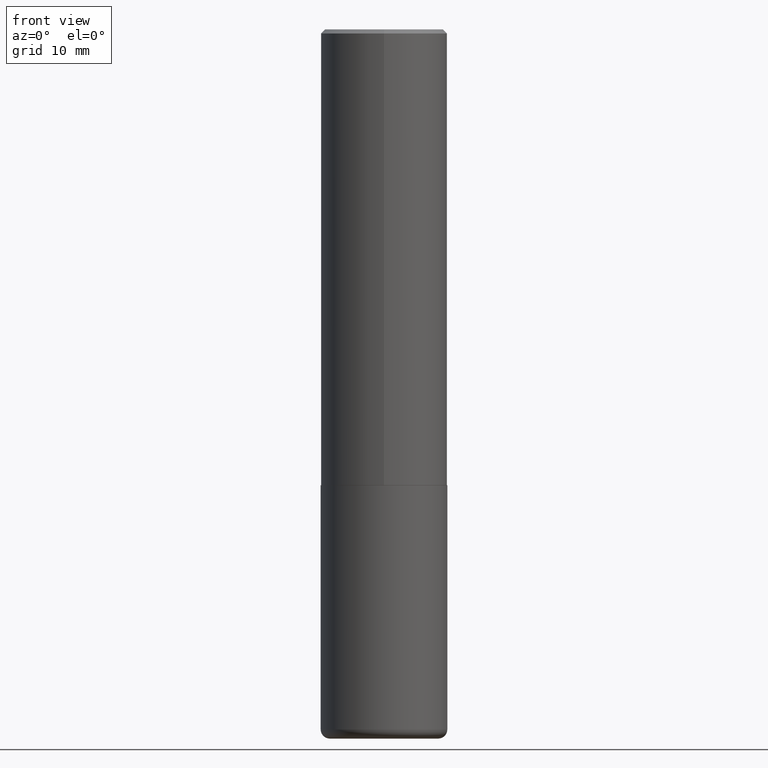
[diagram: clean part render]
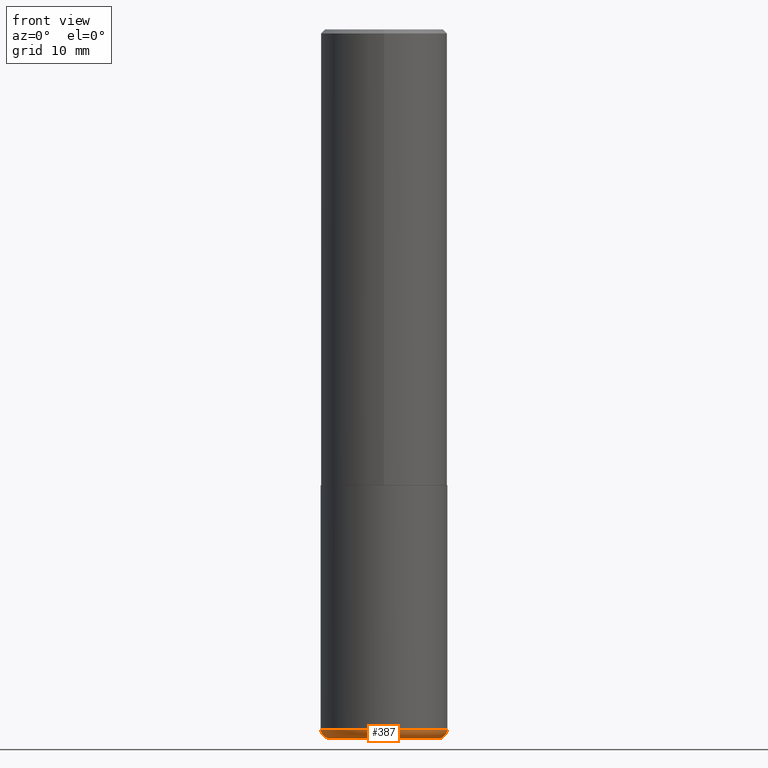
[diagram: same view with one face highlighted and labeled with its STEP entity id]
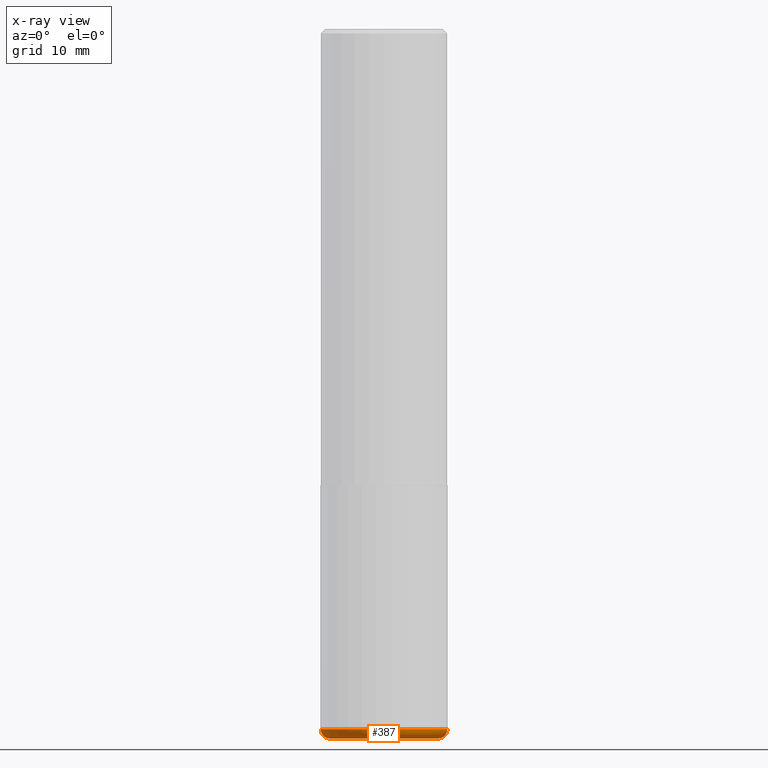
[diagram: x-ray of the same camera — body ghosted, the highlighted face saturated]
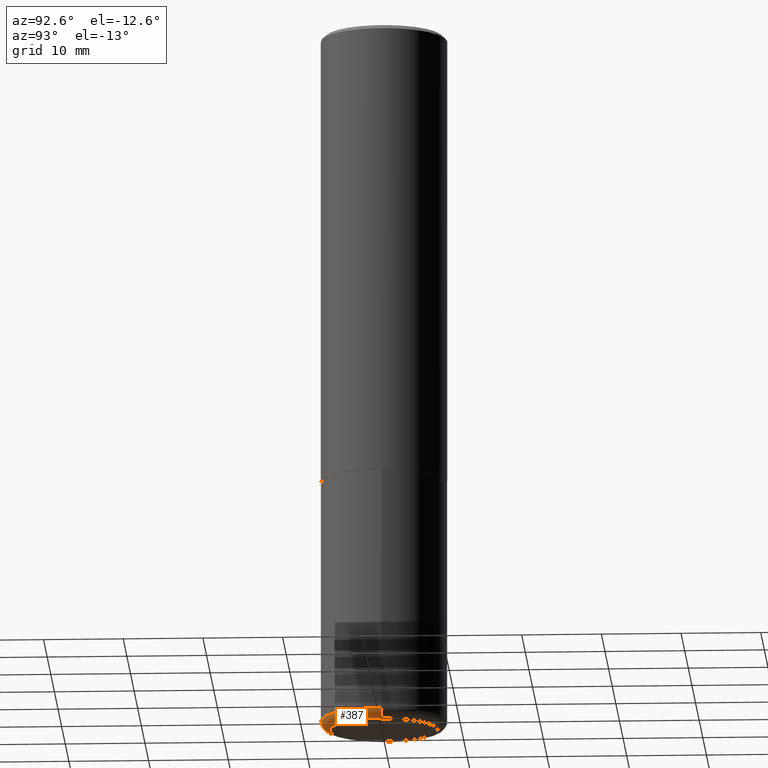
[diagram: same view with one face highlighted and labeled with its STEP entity id]
A machine part, front view. The second image highlights one B-rep face of the part: STEP entity #387.
The next image is the same camera in x-ray: the body ghosted, the highlighted face saturated — about 0% of this face is hidden behind the body in this view.
A second angle (auxiliary view) of the same face is appended — the face is thin or edge-on in the first view.
In plain terms, the highlighted toroidal blend (fillet) surface has major radius 6.7945 mm and minor (blend) radius 1.143 mm.
Its self-contained STEP definition (entity closure, byte-faithful):
#42 = EDGE_LOOP ( 'NONE', ( #410, #395, #51, #302 ) ) ;
#51 = ORIENTED_EDGE ( 'NONE', *, *, #91, .T. ) ;
#58 = CARTESIAN_POINT ( 'NONE',  ( 0.2675000000000000155, -1.393101054198414437E-14, -3.454999999999999627 ) ) ;
#59 = AXIS2_PLACEMENT_3D ( 'NONE', #259, #391, #97 ) ;
#74 = CIRCLE ( 'NONE', #173, 0.04500000000000013711 ) ;
#91 = EDGE_CURVE ( 'NONE', #377, #306, #315, .T. ) ;
#92 = DIRECTION ( 'NONE',  ( 1.000000000000000000, -6.982962677686269077E-15, 0.000000000000000000 ) ) ;
#97 = DIRECTION ( 'NONE',  ( 1.000000000000000000, -6.982962677686265922E-15, 4.883557194083112340E-29 ) ) ;
#98 = DIRECTION ( 'NONE',  ( -2.445468806185136597E-29, 3.491481338843145583E-15, 1.000000000000000000 ) ) ;
#112 = AXIS2_PLACEMENT_3D ( 'NONE', #58, #192, #414 ) ;
#119 = CIRCLE ( 'NONE', #129, 0.3125000000000000000 ) ;
#127 = CARTESIAN_POINT ( 'NONE',  ( 8.559140821647976968E-29, -1.222018468595100934E-14, -3.500000000000000000 ) ) ;
#129 = AXIS2_PLACEMENT_3D ( 'NONE', #344, #98, #241 ) ;
#132 = CARTESIAN_POINT ( 'NONE',  ( -0.2675000000000000155, -1.008105242212274537E-14, -3.500000000000000000 ) ) ;
#156 = CARTESIAN_POINT ( 'NONE',  ( 0.2675000000000000155, -1.408812720223208600E-14, -3.500000000000000000 ) ) ;
#157 = TOROIDAL_SURFACE ( 'NONE', #59, 0.2675000000000000155, 0.04500000000000010242 ) ;
#167 = EDGE_CURVE ( 'NONE', #379, #253, #74, .T. ) ;
#173 = AXIS2_PLACEMENT_3D ( 'NONE', #381, #320, #386 ) ;
#186 = EDGE_CURVE ( 'NONE', #379, #377, #230, .T. ) ;
#192 = DIRECTION ( 'NONE',  ( -6.982962677686266711E-15, -1.000000000000000000, 3.491481338843145583E-15 ) ) ;
#202 = CARTESIAN_POINT ( 'NONE',  ( -0.3125000000000000555, -9.842621976452751474E-15, -3.454999999999999627 ) ) ;
#230 = CIRCLE ( 'NONE', #389, 0.2675000000000000155 ) ;
#241 = DIRECTION ( 'NONE',  ( 1.000000000000000000, -6.982962677686269077E-15, 0.000000000000000000 ) ) ;
#253 = VERTEX_POINT ( 'NONE', #202 ) ;
#259 = CARTESIAN_POINT ( 'NONE',  ( 8.449094725369646135E-29, -1.206306802570306613E-14, -3.454999999999999627 ) ) ;
#288 = FACE_OUTER_BOUND ( 'NONE', #42, .T. ) ;
#299 = CARTESIAN_POINT ( 'NONE',  ( 0.3125000000000000555, -1.424524386248002448E-14, -3.454999999999999627 ) ) ;
#302 = ORIENTED_EDGE ( 'NONE', *, *, #418, .F. ) ;
#306 = VERTEX_POINT ( 'NONE', #299 ) ;
#315 = CIRCLE ( 'NONE', #112, 0.04500000000000013711 ) ;
#320 = DIRECTION ( 'NONE',  ( 7.105427357601001859E-15, 1.000000000000000000, -3.491481338843145583E-15 ) ) ;
#344 = CARTESIAN_POINT ( 'NONE',  ( 8.449094725369646135E-29, -1.206306802570306613E-14, -3.454999999999999627 ) ) ;
#377 = VERTEX_POINT ( 'NONE', #156 ) ;
#379 = VERTEX_POINT ( 'NONE', #132 ) ;
#381 = CARTESIAN_POINT ( 'NONE',  ( -0.2675000000000000155, -1.016236620754479763E-14, -3.454999999999999627 ) ) ;
#386 = DIRECTION ( 'NONE',  ( -1.000000000000000000, 7.105427357601011325E-15, 0.000000000000000000 ) ) ;
#387 = ADVANCED_FACE ( 'NONE', ( #288 ), #157, .T. ) ;
#388 = DIRECTION ( 'NONE',  ( -2.445468806185136597E-29, 3.491481338843145583E-15, 1.000000000000000000 ) ) ;
#389 = AXIS2_PLACEMENT_3D ( 'NONE', #127, #388, #92 ) ;
#391 = DIRECTION ( 'NONE',  ( -2.445468806185136597E-29, 3.491481338843145583E-15, 1.000000000000000000 ) ) ;
#395 = ORIENTED_EDGE ( 'NONE', *, *, #186, .T. ) ;
#410 = ORIENTED_EDGE ( 'NONE', *, *, #167, .F. ) ;
#414 = DIRECTION ( 'NONE',  ( 1.000000000000000000, -6.982962677686246989E-15, 0.000000000000000000 ) ) ;
#418 = EDGE_CURVE ( 'NONE', #253, #306, #119, .T. ) ;